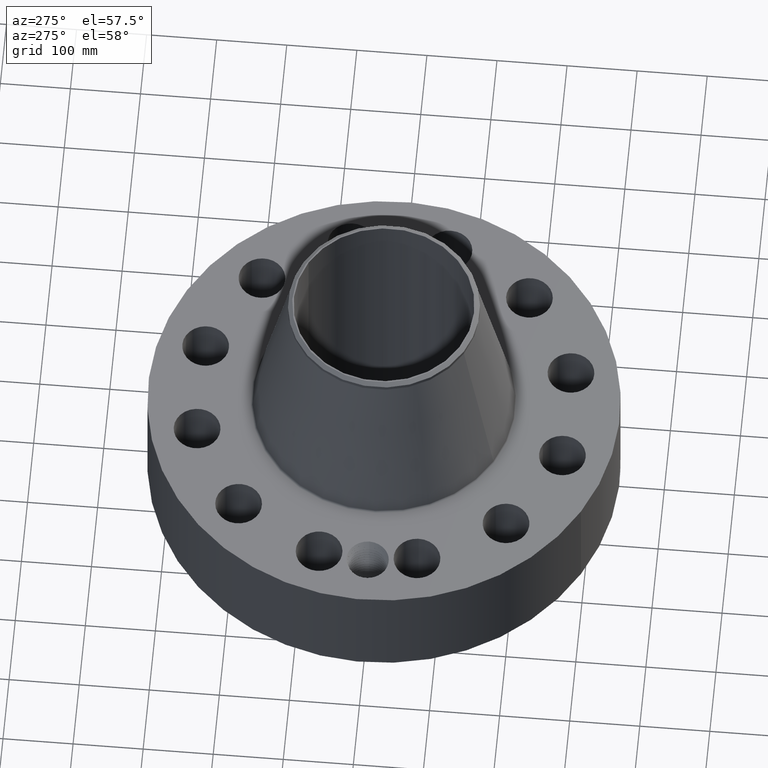
[diagram: clean part render]
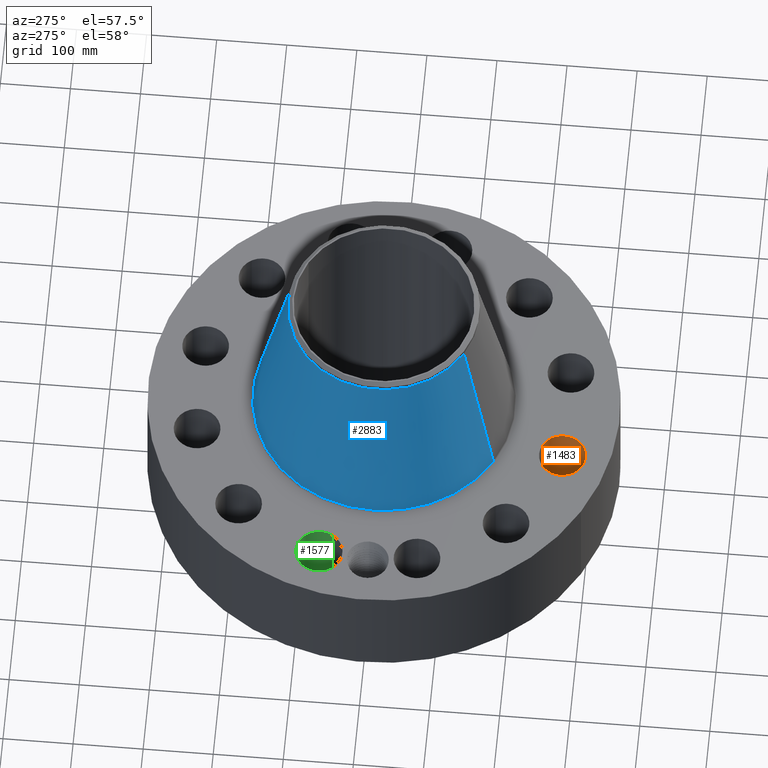
[diagram: same view with three faces highlighted in distinct colors, each labeled with its STEP entity id]
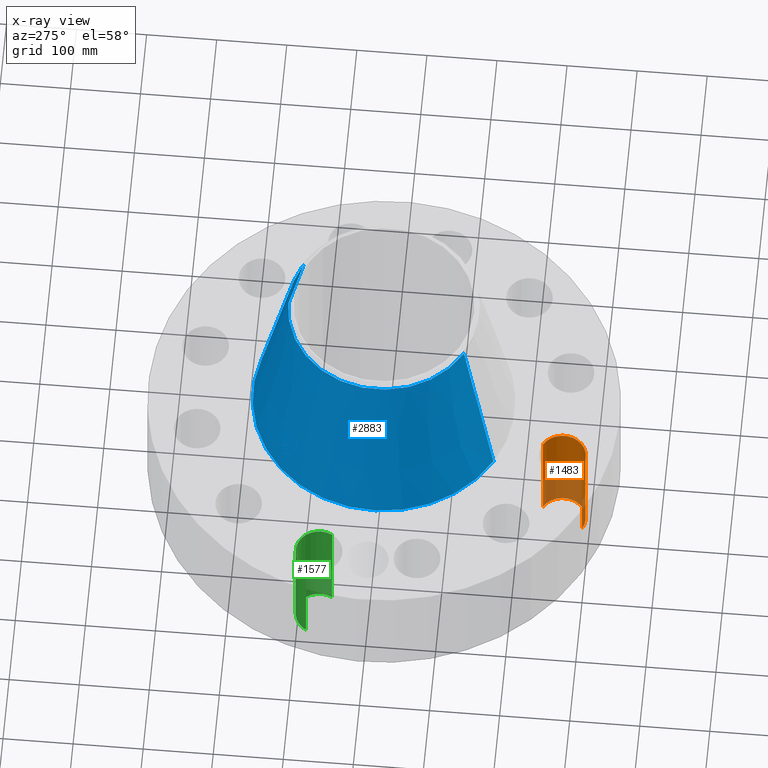
[diagram: x-ray of the same camera — body ghosted, the three highlighted faces saturated]
A machine part, auxiliary view with three faces highlighted in distinct colors.
The next image is the same camera in x-ray (body ghosted, the three faces saturated) — at least one of them is partly hidden behind the body in this view.
Their STEP definitions:

[orange] entity #1483 — the highlighted cylindrical surface (edge-blend (fillet) strip) has radius 33.274 mm, axis along (0, -0, -1).
#311=AXIS2_PLACEMENT_3D('Circle Axis2P3D',#309,#310,$) ;
#724=AXIS2_PLACEMENT_3D('Circle Axis2P3D',#722,#723,$) ;
#1465=AXIS2_PLACEMENT_3D('Cylinder Axis2P3D',#1462,#1463,#1464) ;
#309=CARTESIAN_POINT('Axis2P3D Location',(-2.74995235423,-10.2629619044,0.250000000001)) ;
#313=CARTESIAN_POINT('Vertex',(-2.12190489865,-9.11332874828,0.250000000001)) ;
#315=CARTESIAN_POINT('Vertex',(-3.3779998098,-11.4125950604,0.250000000001)) ;
#717=CARTESIAN_POINT('Vertex',(-3.3779998098,-11.4125950604,6.75000000003)) ;
#719=CARTESIAN_POINT('Vertex',(-2.12190489865,-9.11332874828,6.75000000003)) ;
#722=CARTESIAN_POINT('Axis2P3D Location',(-2.74995235423,-10.2629619044,6.75000000003)) ;
#1462=CARTESIAN_POINT('Axis2P3D Location',(-2.74995235423,-10.2629619044,6.74606299215)) ;
#1467=CARTESIAN_POINT('Line Origine',(-2.12190489865,-9.11332874828,3.50000000001)) ;
#1472=CARTESIAN_POINT('Line Origine',(-3.3779998098,-11.4125950604,3.50000000001)) ;
#310=DIRECTION('Axis2P3D Direction',(0.,0.,-0.0393700787402)) ;
#723=DIRECTION('Axis2P3D Direction',(0.,0.,-0.0393700787402)) ;
#1463=DIRECTION('Axis2P3D Direction',(0.,-0.,-0.0393700787402)) ;
#1464=DIRECTION('Axis2P3D XDirection',(-0.0188750212049,-0.0345504945626,0.)) ;
#1468=DIRECTION('Vector Direction',(0.,0.,-0.0393700787402)) ;
#1473=DIRECTION('Vector Direction',(0.,0.,-0.0393700787402)) ;
#1469=VECTOR('Line Direction',#1468,0.0393700787402) ;
#1474=VECTOR('Line Direction',#1473,0.0393700787402) ;
#1478=ORIENTED_EDGE('',*,*,#1471,.F.) ;
#1479=ORIENTED_EDGE('',*,*,#317,.T.) ;
#1480=ORIENTED_EDGE('',*,*,#1476,.T.) ;
#1481=ORIENTED_EDGE('',*,*,#726,.F.) ;
#1483=ADVANCED_FACE('PartBody',(#1482),#1466,.F.) ;
#312=CIRCLE('generated circle',#311,1.31000000001) ;
#725=CIRCLE('generated circle',#724,1.31000000001) ;
#1466=CYLINDRICAL_SURFACE('generated cylinder',#1465,1.31000000001) ;
#317=EDGE_CURVE('',#314,#316,#312,.T.) ;
#726=EDGE_CURVE('',#720,#718,#725,.T.) ;
#1471=EDGE_CURVE('',#314,#720,#1470,.F.) ;
#1476=EDGE_CURVE('',#316,#718,#1475,.F.) ;
#1477=EDGE_LOOP('',(#1478,#1479,#1480,#1481)) ;
#1482=FACE_OUTER_BOUND('',#1477,.T.) ;
#1470=LINE('Line',#1467,#1469) ;
#1475=LINE('Line',#1472,#1474) ;
#314=VERTEX_POINT('',#313) ;
#316=VERTEX_POINT('',#315) ;
#718=VERTEX_POINT('',#717) ;
#720=VERTEX_POINT('',#719) ;

[blue] entity #2883 — the highlighted conical surface has half-angle 11.782 deg.
#2107=AXIS2_PLACEMENT_3D('Circle Axis2P3D',#2105,#2106,$) ;
#2844=AXIS2_PLACEMENT_3D('Cone Axis2P3D',#2841,#2842,#2843) ;
#2874=AXIS2_PLACEMENT_3D('Circle Axis2P3D',#2872,#2873,$) ;
#2083=CARTESIAN_POINT('Vertex',(3.52621369792,6.45469087817,6.84549767643)) ;
#2090=CARTESIAN_POINT('Vertex',(-3.52621369792,-6.45469087817,6.84549767643)) ;
#2105=CARTESIAN_POINT('Axis2P3D Location',(0.,0.,6.84549767643)) ;
#2841=CARTESIAN_POINT('Axis2P3D Location',(0.,0.,16.3386295902)) ;
#2846=CARTESIAN_POINT('Line Origine',(3.05156298396,5.58584857417,11.5920636333)) ;
#2850=CARTESIAN_POINT('Vertex',(2.57691227001,4.71700627018,16.3386295902)) ;
#2857=CARTESIAN_POINT('Vertex',(-2.57691227001,-4.71700627018,16.3386295902)) ;
#2860=CARTESIAN_POINT('Line Origine',(-3.05156298396,-5.58584857417,11.5920636333)) ;
#2872=CARTESIAN_POINT('Axis2P3D Location',(0.,0.,16.3386295902)) ;
#2106=DIRECTION('Axis2P3D Direction',(0.,0.,-0.0393700787402)) ;
#2842=DIRECTION('Axis2P3D Direction',(0.,0.,-0.0393700787402)) ;
#2843=DIRECTION('Axis2P3D XDirection',(-0.0188750212049,-0.0345504945626,0.)) ;
#2847=DIRECTION('Vector Direction',(0.00385401564558,0.00705472831853,-0.0385406340342)) ;
#2861=DIRECTION('Vector Direction',(-0.00385401564558,-0.00705472831853,-0.0385406340342)) ;
#2873=DIRECTION('Axis2P3D Direction',(0.,0.,-0.0393700787402)) ;
#2848=VECTOR('Line Direction',#2847,0.0393700787402) ;
#2862=VECTOR('Line Direction',#2861,0.0393700787402) ;
#2878=ORIENTED_EDGE('',*,*,#2109,.F.) ;
#2879=ORIENTED_EDGE('',*,*,#2864,.T.) ;
#2880=ORIENTED_EDGE('',*,*,#2876,.T.) ;
#2881=ORIENTED_EDGE('',*,*,#2852,.F.) ;
#2883=ADVANCED_FACE('PartBody',(#2882),#2845,.T.) ;
#2108=CIRCLE('generated circle',#2107,7.35508105843) ;
#2875=CIRCLE('generated circle',#2874,5.37500000002) ;
#2845=CONICAL_SURFACE('Cone',#2844,5.37500000002,0.205632147331) ;
#2109=EDGE_CURVE('',#2091,#2084,#2108,.T.) ;
#2852=EDGE_CURVE('',#2084,#2851,#2849,.F.) ;
#2864=EDGE_CURVE('',#2091,#2858,#2863,.F.) ;
#2876=EDGE_CURVE('',#2858,#2851,#2875,.T.) ;
#2877=EDGE_LOOP('',(#2878,#2879,#2880,#2881)) ;
#2882=FACE_OUTER_BOUND('',#2877,.T.) ;
#2849=LINE('Line',#2846,#2848) ;
#2863=LINE('Line',#2860,#2862) ;
#2084=VERTEX_POINT('',#2083) ;
#2091=VERTEX_POINT('',#2090) ;
#2851=VERTEX_POINT('',#2850) ;
#2858=VERTEX_POINT('',#2857) ;

[green] entity #1577 — the highlighted cylindrical surface (edge-blend (fillet) strip) has radius 33.274 mm, axis along (-0, 0, -1).
#374=AXIS2_PLACEMENT_3D('Circle Axis2P3D',#372,#373,$) ;
#769=AXIS2_PLACEMENT_3D('Circle Axis2P3D',#767,#768,$) ;
#1552=AXIS2_PLACEMENT_3D('Cylinder Axis2P3D',#1549,#1550,#1551) ;
#367=CARTESIAN_POINT('Vertex',(-9.11332874828,2.12190489865,0.250000000001)) ;
#369=CARTESIAN_POINT('Vertex',(-11.4125950604,3.3779998098,0.250000000001)) ;
#372=CARTESIAN_POINT('Axis2P3D Location',(-10.2629619044,2.74995235423,0.250000000001)) ;
#767=CARTESIAN_POINT('Axis2P3D Location',(-10.2629619044,2.74995235423,6.75000000003)) ;
#771=CARTESIAN_POINT('Vertex',(-11.4125950604,3.3779998098,6.75000000003)) ;
#773=CARTESIAN_POINT('Vertex',(-9.11332874828,2.12190489865,6.75000000003)) ;
#1549=CARTESIAN_POINT('Axis2P3D Location',(-10.2629619044,2.74995235423,6.74606299215)) ;
#1554=CARTESIAN_POINT('Line Origine',(-9.11332874828,2.12190489865,3.50000000001)) ;
#1559=CARTESIAN_POINT('Line Origine',(-11.4125950604,3.3779998098,3.50000000001)) ;
#373=DIRECTION('Axis2P3D Direction',(0.,0.,-0.0393700787402)) ;
#768=DIRECTION('Axis2P3D Direction',(0.,0.,-0.0393700787402)) ;
#1550=DIRECTION('Axis2P3D Direction',(-0.,0.,-0.0393700787402)) ;
#1551=DIRECTION('Axis2P3D XDirection',(-0.0345504945626,0.0188750212049,0.)) ;
#1555=DIRECTION('Vector Direction',(0.,0.,-0.0393700787402)) ;
#1560=DIRECTION('Vector Direction',(0.,0.,-0.0393700787402)) ;
#1556=VECTOR('Line Direction',#1555,0.0393700787402) ;
#1561=VECTOR('Line Direction',#1560,0.0393700787402) ;
#1572=ORIENTED_EDGE('',*,*,#1563,.F.) ;
#1573=ORIENTED_EDGE('',*,*,#376,.T.) ;
#1574=ORIENTED_EDGE('',*,*,#1558,.T.) ;
#1575=ORIENTED_EDGE('',*,*,#775,.F.) ;
#1577=ADVANCED_FACE('PartBody',(#1576),#1553,.F.) ;
#375=CIRCLE('generated circle',#374,1.31000000001) ;
#770=CIRCLE('generated circle',#769,1.31000000001) ;
#1553=CYLINDRICAL_SURFACE('generated cylinder',#1552,1.31000000001) ;
#376=EDGE_CURVE('',#370,#368,#375,.T.) ;
#775=EDGE_CURVE('',#772,#774,#770,.T.) ;
#1558=EDGE_CURVE('',#368,#774,#1557,.F.) ;
#1563=EDGE_CURVE('',#370,#772,#1562,.F.) ;
#1571=EDGE_LOOP('',(#1572,#1573,#1574,#1575)) ;
#1576=FACE_OUTER_BOUND('',#1571,.T.) ;
#1557=LINE('Line',#1554,#1556) ;
#1562=LINE('Line',#1559,#1561) ;
#368=VERTEX_POINT('',#367) ;
#370=VERTEX_POINT('',#369) ;
#772=VERTEX_POINT('',#771) ;
#774=VERTEX_POINT('',#773) ;